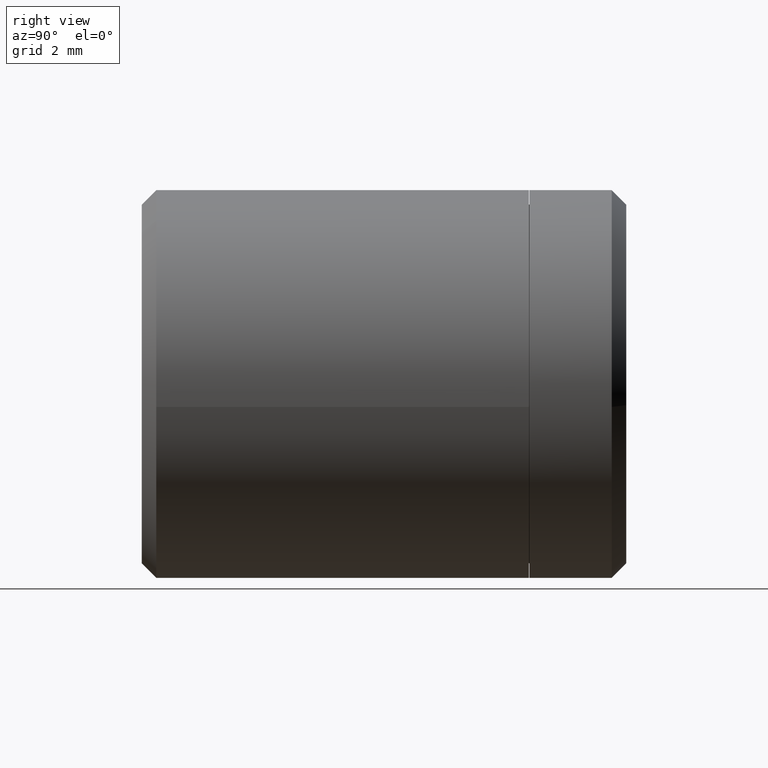
[diagram: clean part render]
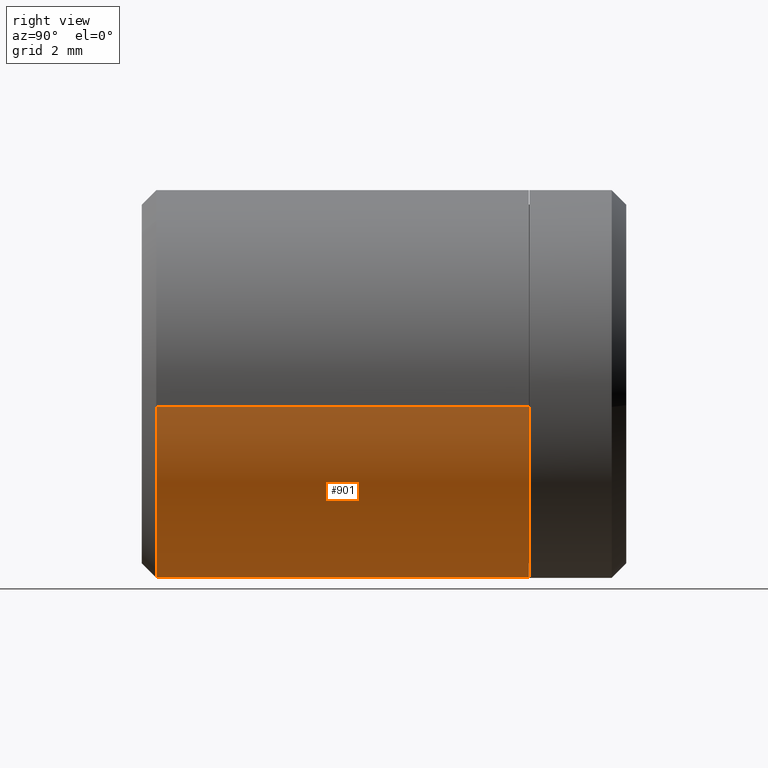
[diagram: same view with one face highlighted and labeled with its STEP entity id]
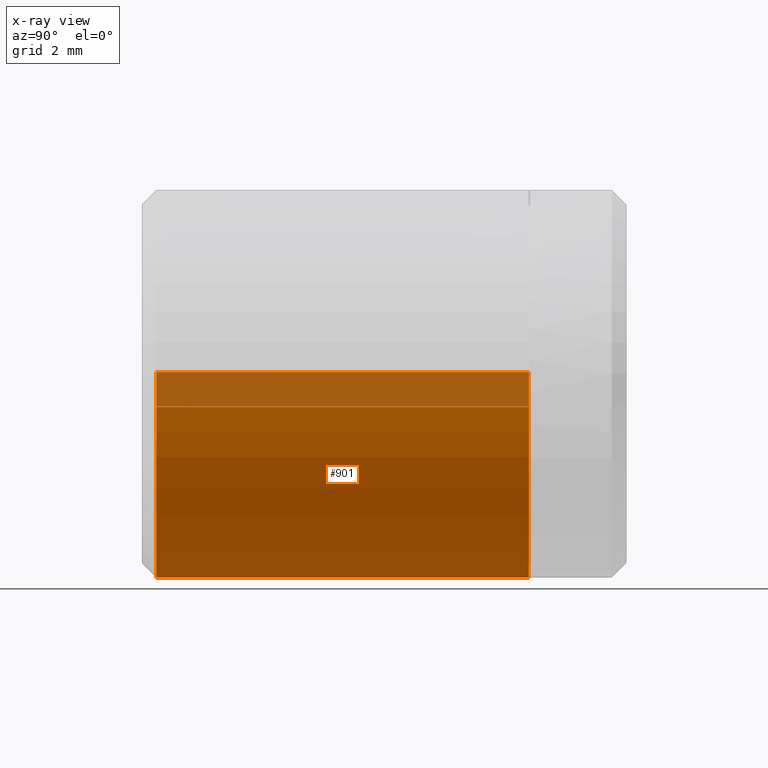
[diagram: x-ray of the same camera — body ghosted, the highlighted face saturated]
A machine part, right view. The second image highlights one B-rep face of the part: STEP entity #901.
The next image is the same camera in x-ray: the body ghosted, the highlighted face saturated — about 17% of this face is hidden behind the body in this view.
In plain terms, the highlighted face is a freeform B-spline surface patch.
Its self-contained STEP definition (entity closure, byte-faithful):
#580=CARTESIAN_POINT('',(3.972036815488612,0.300002999999665,-0.472135082791438));
#581=VERTEX_POINT('',#580);
#647=CARTESIAN_POINT('',(-3.992537781884276,0.300002999999738,0.244192670297197));
#648=VERTEX_POINT('',#647);
#662=CARTESIAN_POINT('',(0.0,0.300003000000004,-3.999998000000003));
#663=VERTEX_POINT('',#662);
#664=CARTESIAN_POINT('',(-3.992537781884276,0.300002999999738,0.244192670297197));
#665=CARTESIAN_POINT('',(-3.999998000000001,0.300003000000004,0.122210291996722));
#666=CARTESIAN_POINT('',(-3.999998000000000,0.300003000000004,-2.220446E-015));
#667=CARTESIAN_POINT('',(-3.999998000000001,0.300003000000004,-3.999998000000002));
#668=CARTESIAN_POINT('',(0.0,0.300003000000004,-3.999998000000003));
#676=(BOUNDED_CURVE()B_SPLINE_CURVE(2,(#664,#665,#666,#667,#668),.UNSPECIFIED.,.F.,.U.)B_SPLINE_CURVE_WITH_KNOTS((3,2,3),(0.739333022584997,0.750000000000000,1.0),.UNSPECIFIED.)CURVE()GEOMETRIC_REPRESENTATION_ITEM()RATIONAL_B_SPLINE_CURVE((0.976072170999833,0.987502858599637,1.0,0.707106781186547,1.0))REPRESENTATION_ITEM(''));
#677=EDGE_CURVE('',#648,#663,#676,.T.);
#679=CARTESIAN_POINT('',(0.0,0.300003000000004,-3.999998000000003));
#680=CARTESIAN_POINT('',(3.552697839576823,0.300003000000004,-3.999998000000003));
#681=CARTESIAN_POINT('',(3.972036815488612,0.300002999999665,-0.472135082791438));
#689=(BOUNDED_CURVE()B_SPLINE_CURVE(2,(#679,#680,#681),.UNSPECIFIED.,.F.,.U.)B_SPLINE_CURVE_WITH_KNOTS((3,3),(0.0,0.229562544944996),.UNSPECIFIED.)CURVE()GEOMETRIC_REPRESENTATION_ITEM()RATIONAL_B_SPLINE_CURVE((1.0,0.731050749168209,0.956026894192386))REPRESENTATION_ITEM(''));
#690=EDGE_CURVE('',#663,#581,#689,.T.);
#797=CARTESIAN_POINT('',(3.972037806257247,7.989999999999999,-0.472135219678184));
#798=VERTEX_POINT('',#797);
#799=CARTESIAN_POINT('',(3.972037806257247,7.989999999999999,-0.472135219678184));
#800=CARTESIAN_POINT('',(3.972036815488612,0.300002999999665,-0.472135082791438));
#801=QUASI_UNIFORM_CURVE('',1,(#799,#800),.UNSPECIFIED.,.F.,.U.);
#802=EDGE_CURVE('',#798,#581,#801,.T.);
#821=CARTESIAN_POINT('',(-3.992538779092364,7.990000000000000,0.244192746497483));
#822=VERTEX_POINT('',#821);
#836=CARTESIAN_POINT('',(-3.992538779092364,7.990000000000000,0.244192746497483));
#837=CARTESIAN_POINT('',(-3.992537781884276,0.300002999999738,0.244192670297197));
#838=QUASI_UNIFORM_CURVE('',1,(#836,#837),.UNSPECIFIED.,.F.,.U.);
#839=EDGE_CURVE('',#822,#648,#838,.T.);
#847=CARTESIAN_POINT('',(-3.992538195552668,8.182249925000001,0.244194097090886));
#848=CARTESIAN_POINT('',(-4.236732292643556,8.182249925000001,-3.748344098461781));
#849=CARTESIAN_POINT('',(-0.244194097090888,8.182249925000001,-3.992538195552671));
#850=CARTESIAN_POINT('',(3.526173081814513,8.182249925000001,-4.223143731143916));
#851=CARTESIAN_POINT('',(3.972037112445138,8.182249925000001,-0.472136820592801));
#852=CARTESIAN_POINT('',(-3.992538195552668,0.102946826875003,0.244194097090886));
#853=CARTESIAN_POINT('',(-4.236732292643556,0.102946826875002,-3.748344098461781));
#854=CARTESIAN_POINT('',(-0.244194097090888,0.102946826875003,-3.992538195552671));
#855=CARTESIAN_POINT('',(3.526173081814513,0.102946826875002,-4.223143731143916));
#856=CARTESIAN_POINT('',(3.972037112445138,0.102946826875003,-0.472136820592801));
#864=(BOUNDED_SURFACE()B_SPLINE_SURFACE(2,1,((#847,#852),(#848,#853),(#849,#854),(#850,#855),(#851,#856)),.UNSPECIFIED.,.F.,.F.,.U.)B_SPLINE_SURFACE_WITH_KNOTS((3,2,3),(2,2),(0.0,6.627415341115271,12.989734068585930),(0.0,8.079303098124999),.UNSPECIFIED.)GEOMETRIC_REPRESENTATION_ITEM()RATIONAL_B_SPLINE_SURFACE(((1.0,1.0),(0.707106781186548,0.707106781186548),(1.0,1.0),(0.718822509939086,0.718822509939086),(0.977505800795127,0.977505800795127)))REPRESENTATION_ITEM('')SURFACE());
#865=ORIENTED_EDGE('',*,*,#690,.F.);
#866=ORIENTED_EDGE('',*,*,#677,.F.);
#867=ORIENTED_EDGE('',*,*,#839,.F.);
#868=CARTESIAN_POINT('',(0.0,7.990000000000000,-4.000000000000003));
#869=VERTEX_POINT('',#868);
#870=CARTESIAN_POINT('',(-3.992538779092365,7.990000000000000,0.244192746497483));
#871=CARTESIAN_POINT('',(-4.000000000000000,7.990000000000001,0.122210360699189));
#872=CARTESIAN_POINT('',(-4.0,7.990000000000000,-2.220446E-015));
#873=CARTESIAN_POINT('',(-4.000000000000000,7.990000000000000,-4.000000000000003));
#874=CARTESIAN_POINT('',(0.0,7.990000000000000,-4.000000000000003));
#882=(BOUNDED_CURVE()B_SPLINE_CURVE(2,(#870,#871,#872,#873,#874),.UNSPECIFIED.,.F.,.U.)B_SPLINE_CURVE_WITH_KNOTS((3,2,3),(0.739333021930164,0.750000000000000,1.0),.UNSPECIFIED.)CURVE()GEOMETRIC_REPRESENTATION_ITEM()RATIONAL_B_SPLINE_CURVE((0.976072169596401,0.987502857832453,1.0,0.707106781186548,1.0))REPRESENTATION_ITEM(''));
#883=EDGE_CURVE('',#822,#869,#882,.T.);
#884=ORIENTED_EDGE('',*,*,#883,.T.);
#885=CARTESIAN_POINT('',(0.0,7.990000000000000,-4.000000000000003));
#886=CARTESIAN_POINT('',(3.552699598945346,7.990000000000000,-4.000000000000003));
#887=CARTESIAN_POINT('',(3.972037806257247,7.989999999999999,-0.472135219678184));
#895=(BOUNDED_CURVE()B_SPLINE_CURVE(2,(#885,#886,#887),.UNSPECIFIED.,.F.,.U.)B_SPLINE_CURVE_WITH_KNOTS((3,3),(0.0,0.229562544142837),.UNSPECIFIED.)CURVE()GEOMETRIC_REPRESENTATION_ITEM()RATIONAL_B_SPLINE_CURVE((1.0,0.731050750107997,0.956026892620120))REPRESENTATION_ITEM(''));
#896=EDGE_CURVE('',#869,#798,#895,.T.);
#897=ORIENTED_EDGE('',*,*,#896,.T.);
#898=ORIENTED_EDGE('',*,*,#802,.T.);
#899=EDGE_LOOP('',(#865,#866,#867,#884,#897,#898));
#900=FACE_OUTER_BOUND('',#899,.T.);
#901=ADVANCED_FACE('',(#900),#864,.T.);